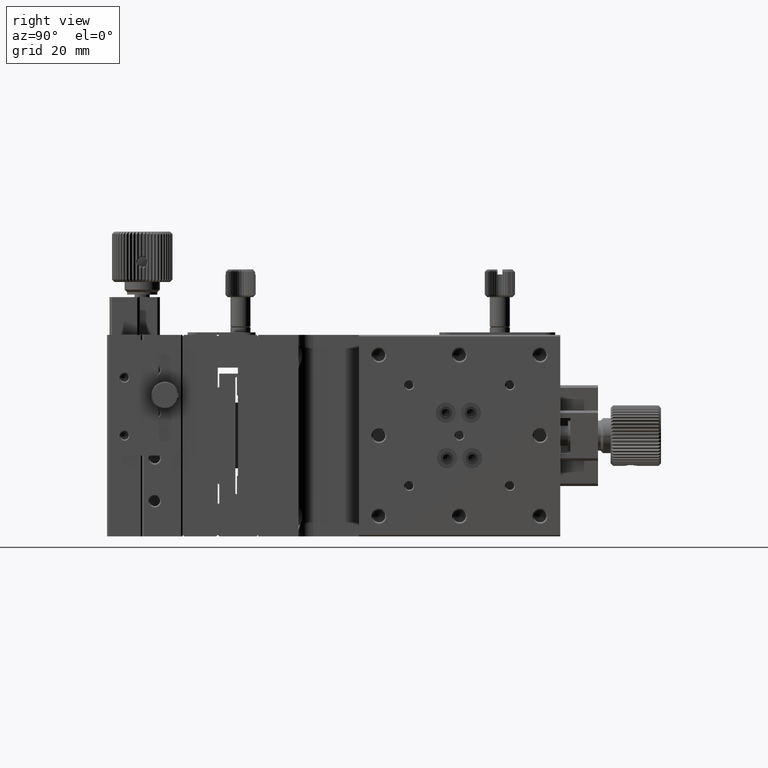
[diagram: clean part render]
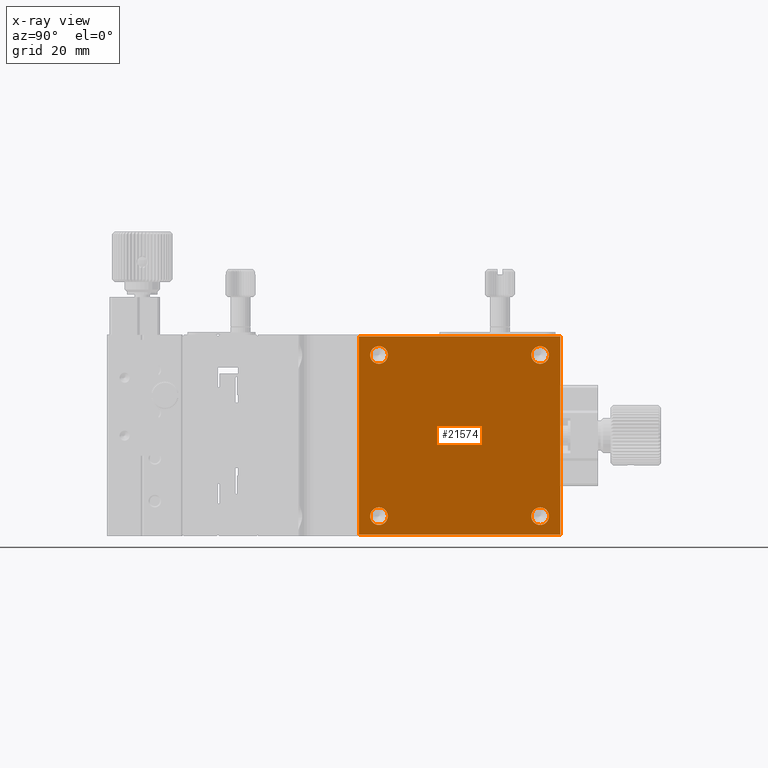
[diagram: x-ray — body ghosted, one internal face saturated and labeled with its STEP entity id]
A machine part, right view, then the same camera in x-ray: the body is ghosted and one INTERNAL B-rep face — a face not visible from any outside direction — is saturated and labeled: STEP entity #21574.
In plain terms, the highlighted planar face has unit normal (1, 0, -0).
Its self-contained STEP definition (entity closure, byte-faithful):
#641 = FACE_OUTER_BOUND ( 'NONE', #26186, .T. ) ;
#803 = CARTESIAN_POINT ( 'NONE',  ( 16.00000000000000000, 23.99999999999999289, -37.75000000000000000 ) ) ;
#942 = CARTESIAN_POINT ( 'NONE',  ( 16.00000000000000000, 19.99999999999999645, -0.2999999999999781175 ) ) ;
#1206 = VERTEX_POINT ( 'NONE', #46672 ) ;
#1825 = FACE_BOUND ( 'NONE', #29394, .T. ) ;
#3230 = ORIENTED_EDGE ( 'NONE', *, *, #33860, .F. ) ;
#3262 = EDGE_CURVE ( 'NONE', #17696, #17696, #22840, .T. ) ;
#4162 = VERTEX_POINT ( 'NONE', #35615 ) ;
#5762 = DIRECTION ( 'NONE',  ( -1.000000000000000000, 0.000000000000000000, 0.000000000000000000 ) ) ;
#5777 = VERTEX_POINT ( 'NONE', #11505 ) ;
#5806 = CARTESIAN_POINT ( 'NONE',  ( 16.00000000000000000, 55.99999999999999289, -5.749999999999994671 ) ) ;
#6545 = CIRCLE ( 'NONE', #17235, 1.750000000000001554 ) ;
#6958 = DIRECTION ( 'NONE',  ( 0.000000000000000000, 0.000000000000000000, -1.000000000000000000 ) ) ;
#9245 = EDGE_CURVE ( 'NONE', #52300, #52300, #17512, .T. ) ;
#10424 = DIRECTION ( 'NONE',  ( -1.000000000000000000, 0.000000000000000000, 0.000000000000000000 ) ) ;
#10665 = FACE_BOUND ( 'NONE', #51899, .T. ) ;
#11505 = CARTESIAN_POINT ( 'NONE',  ( 16.00000000000000000, 60.00000000000000000, -39.69999999999999574 ) ) ;
#13243 = CARTESIAN_POINT ( 'NONE',  ( 16.00000000000000000, 55.99999999999999289, -36.00000000000000000 ) ) ;
#13671 = VERTEX_POINT ( 'NONE', #803 ) ;
#14356 = LINE ( 'NONE', #46893, #15218 ) ;
#14627 = EDGE_CURVE ( 'NONE', #1206, #33809, #38436, .T. ) ;
#15218 = VECTOR ( 'NONE', #18922, 1000.000000000000000 ) ;
#16195 = EDGE_CURVE ( 'NONE', #56698, #56698, #6545, .T. ) ;
#16237 = ORIENTED_EDGE ( 'NONE', *, *, #16195, .F. ) ;
#17119 = EDGE_CURVE ( 'NONE', #13671, #13671, #54024, .T. ) ;
#17235 = AXIS2_PLACEMENT_3D ( 'NONE', #13243, #40921, #59434 ) ;
#17512 = CIRCLE ( 'NONE', #29187, 1.749999999999999778 ) ;
#17696 = VERTEX_POINT ( 'NONE', #40817 ) ;
#18382 = AXIS2_PLACEMENT_3D ( 'NONE', #942, #48037, #51406 ) ;
#18872 = LINE ( 'NONE', #59591, #59467 ) ;
#18922 = DIRECTION ( 'NONE',  ( -0.000000000000000000, 1.000000000000000000, -0.000000000000000000 ) ) ;
#20358 = LINE ( 'NONE', #33728, #46440 ) ;
#21574 = ADVANCED_FACE ( 'NONE', ( #641, #52287, #1825, #24047, #10665 ), #42607, .F. ) ;
#22840 = CIRCLE ( 'NONE', #56775, 1.749999999999999778 ) ;
#23246 = ORIENTED_EDGE ( 'NONE', *, *, #17119, .F. ) ;
#23516 = ORIENTED_EDGE ( 'NONE', *, *, #9245, .F. ) ;
#23555 = CARTESIAN_POINT ( 'NONE',  ( 16.00000000000000000, 19.99999999999999645, -0.2999999999999781175 ) ) ;
#24047 = FACE_BOUND ( 'NONE', #31496, .T. ) ;
#24315 = DIRECTION ( 'NONE',  ( 0.000000000000000000, 0.000000000000000000, -1.000000000000000000 ) ) ;
#24911 = DIRECTION ( 'NONE',  ( 0.000000000000000000, 0.000000000000000000, 1.000000000000000000 ) ) ;
#25230 = ORIENTED_EDGE ( 'NONE', *, *, #36629, .F. ) ;
#26186 = EDGE_LOOP ( 'NONE', ( #3230, #46346, #25230, #59588 ) ) ;
#27346 = CARTESIAN_POINT ( 'NONE',  ( 16.00000000000000000, 55.99999999999999289, -37.75000000000000000 ) ) ;
#28064 = DIRECTION ( 'NONE',  ( 0.000000000000000000, 0.000000000000000000, -1.000000000000000000 ) ) ;
#29187 = AXIS2_PLACEMENT_3D ( 'NONE', #37801, #10424, #28064 ) ;
#29394 = EDGE_LOOP ( 'NONE', ( #16237 ) ) ;
#31496 = EDGE_LOOP ( 'NONE', ( #23246 ) ) ;
#33728 = CARTESIAN_POINT ( 'NONE',  ( 16.00000000000000000, 60.00000000000000000, -0.2999999999999781175 ) ) ;
#33809 = VERTEX_POINT ( 'NONE', #53588 ) ;
#33860 = EDGE_CURVE ( 'NONE', #33809, #5777, #14356, .T. ) ;
#35615 = CARTESIAN_POINT ( 'NONE',  ( 16.00000000000000000, 60.00000000000000000, -0.2999999999999780620 ) ) ;
#36629 = EDGE_CURVE ( 'NONE', #4162, #1206, #18872, .T. ) ;
#37801 = CARTESIAN_POINT ( 'NONE',  ( 16.00000000000000000, 55.99999999999999289, -3.999999999999994671 ) ) ;
#38436 = LINE ( 'NONE', #23555, #58658 ) ;
#38907 = DIRECTION ( 'NONE',  ( -1.000000000000000000, 0.000000000000000000, 0.000000000000000000 ) ) ;
#40817 = CARTESIAN_POINT ( 'NONE',  ( 16.00000000000000000, 23.99999999999999289, -5.749999999999994671 ) ) ;
#40921 = DIRECTION ( 'NONE',  ( -1.000000000000000000, 0.000000000000000000, 0.000000000000000000 ) ) ;
#41980 = DIRECTION ( 'NONE',  ( 0.000000000000000000, -1.000000000000000000, 0.000000000000000000 ) ) ;
#42394 = DIRECTION ( 'NONE',  ( -0.000000000000000000, -0.000000000000000000, -1.000000000000000000 ) ) ;
#42607 = PLANE ( 'NONE',  #18382 ) ;
#44312 = EDGE_LOOP ( 'NONE', ( #23516 ) ) ;
#44338 = EDGE_CURVE ( 'NONE', #5777, #4162, #20358, .T. ) ;
#46346 = ORIENTED_EDGE ( 'NONE', *, *, #14627, .F. ) ;
#46440 = VECTOR ( 'NONE', #24911, 1000.000000000000000 ) ;
#46672 = CARTESIAN_POINT ( 'NONE',  ( 16.00000000000000000, 19.99999999999999645, -0.2999999999999780620 ) ) ;
#46893 = CARTESIAN_POINT ( 'NONE',  ( 16.00000000000000000, 19.99999999999999645, -39.69999999999999574 ) ) ;
#47430 = CARTESIAN_POINT ( 'NONE',  ( 16.00000000000000000, 23.99999999999999289, -3.999999999999994671 ) ) ;
#48037 = DIRECTION ( 'NONE',  ( 1.000000000000000000, 0.000000000000000000, -0.000000000000000000 ) ) ;
#51120 = AXIS2_PLACEMENT_3D ( 'NONE', #51975, #38907, #6958 ) ;
#51406 = DIRECTION ( 'NONE',  ( 0.000000000000000000, 0.000000000000000000, 1.000000000000000000 ) ) ;
#51899 = EDGE_LOOP ( 'NONE', ( #55342 ) ) ;
#51975 = CARTESIAN_POINT ( 'NONE',  ( 16.00000000000000000, 23.99999999999999289, -36.00000000000000000 ) ) ;
#52287 = FACE_BOUND ( 'NONE', #44312, .T. ) ;
#52300 = VERTEX_POINT ( 'NONE', #5806 ) ;
#53588 = CARTESIAN_POINT ( 'NONE',  ( 16.00000000000000000, 19.99999999999999645, -39.69999999999999574 ) ) ;
#54024 = CIRCLE ( 'NONE', #51120, 1.750000000000001554 ) ;
#55342 = ORIENTED_EDGE ( 'NONE', *, *, #3262, .F. ) ;
#56698 = VERTEX_POINT ( 'NONE', #27346 ) ;
#56775 = AXIS2_PLACEMENT_3D ( 'NONE', #47430, #5762, #24315 ) ;
#58658 = VECTOR ( 'NONE', #42394, 1000.000000000000000 ) ;
#59434 = DIRECTION ( 'NONE',  ( 0.000000000000000000, 0.000000000000000000, -1.000000000000000000 ) ) ;
#59467 = VECTOR ( 'NONE', #41980, 1000.000000000000000 ) ;
#59588 = ORIENTED_EDGE ( 'NONE', *, *, #44338, .F. ) ;
#59591 = CARTESIAN_POINT ( 'NONE',  ( 16.00000000000000000, 19.99999999999999645, -0.2999999999999781175 ) ) ;